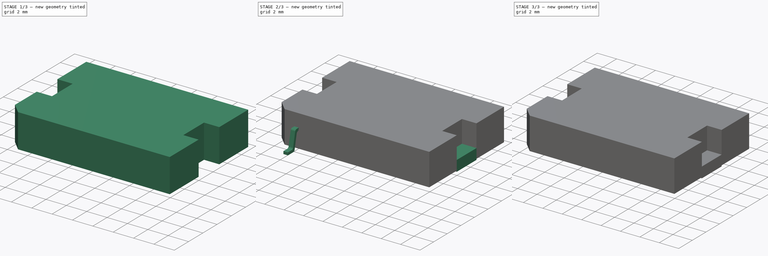
[diagram: build sequence overview — one tinted view per stage of 3, left to right]
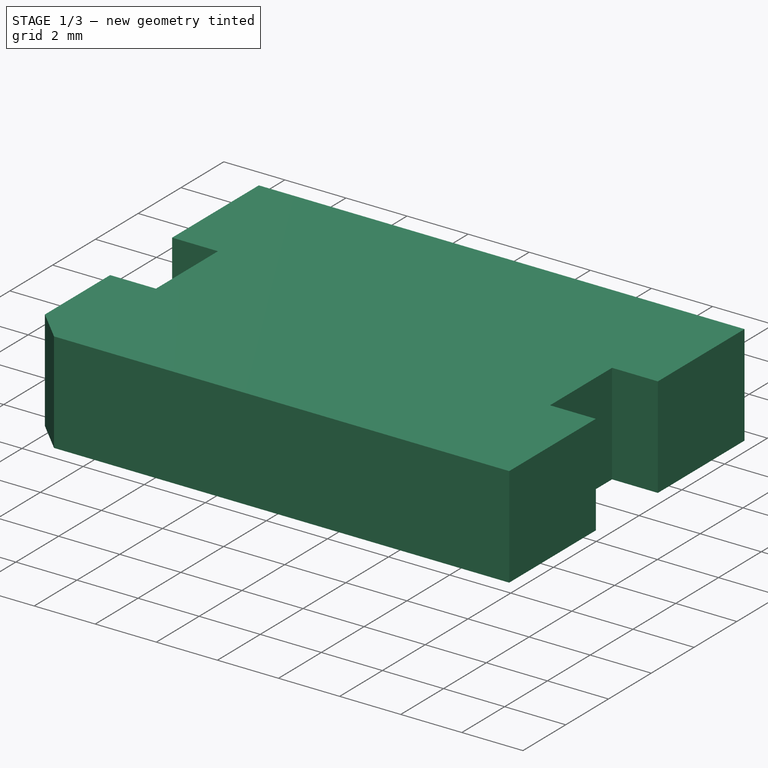
[diagram: stage 1 of 3 — iso view after this stage's code; geometry added in this stage tinted green]
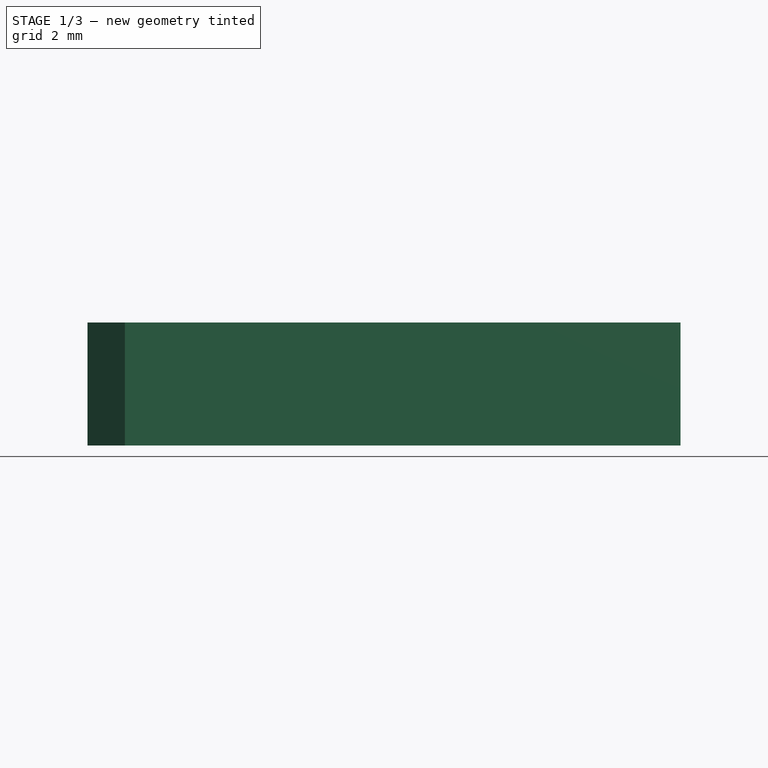
[diagram: stage 1 of 3 — front view after this stage's code; geometry added in this stage tinted green]
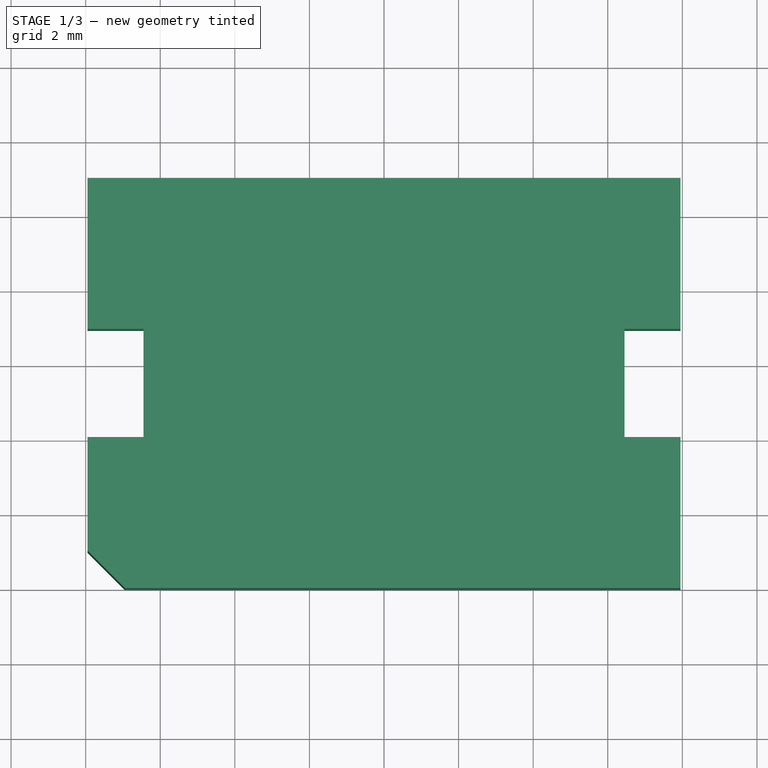
[diagram: stage 1 of 3 — top view after this stage's code; geometry added in this stage tinted green]
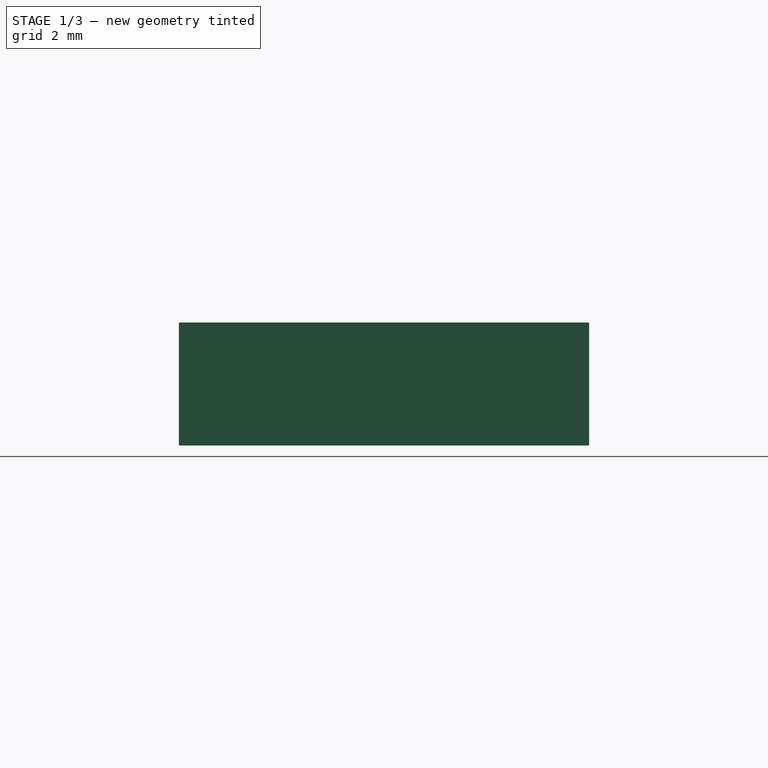
[diagram: stage 1 of 3 — right view after this stage's code; geometry added in this stage tinted green]
FCSTD DOCUMENT  (FreeCAD 0.16RUnknown)
Label: PowerSO20
License: All rights reserved
LicenseURL: http://en.wikipedia.org/wiki/All_rights_reserved
objects: Sketcher::SketchObject×4, PartDesign::Pad×3, PartDesign::Fillet×1, Part::FeaturePython×1, Part::Mirroring×1, PartDesign::Pocket×1
note: 15 computed .brp shape members not serialized (recipe doc carries the construction recipe); baked Part::Feature solids carry a one-line shape summary decoded from their .brp

FEATURE [Sketcher::SketchObject] Sketch001
  Placement = pos=(0,0,0.01) rot=(0,0,1;0rad)
  sketch-geometry (5):
    g0: LineSegment StartX=-7.95 StartY=11 StartZ=0 EndX=7.95 EndY=11 EndZ=0
    g1: LineSegment StartX=7.95 StartY=11 StartZ=0 EndX=7.95 EndY=0 EndZ=0
    g2: LineSegment StartX=7.95 StartY=0 StartZ=0 EndX=-6.95 EndY=0 EndZ=0
    g3: LineSegment StartX=-6.95 StartY=0 StartZ=0 EndX=-7.95 EndY=1 EndZ=0
    g4: LineSegment StartX=-7.95 StartY=1 StartZ=0 EndX=-7.95 EndY=11 EndZ=0
  constraints (15):
    c: Horizontal(g0)
    c: Coincident(g1,g0)
    c: PointOnObject(g1,g-1)
    c: Vertical(g1)
    c: Coincident(g2,g1)
    c: PointOnObject(g2,g-1)
    c: Coincident(g3,g2)
    c: Coincident(g4,g3)
    c: Coincident(g4,g0)
    c: Vertical(g4)
    c: Angle(g3,g4) = 2.35619
    c: DistanceX(g0,g0) = 15.9
    c: DistanceY(g1,g1) = 11
    c: DistanceX(g3,g2) = 1
    c: Symmetric(g0,g0,g-2)
FEATURE [PartDesign::Pad] Pad001
  Length = 3.3
  Length2 = 100
  Placement = pos=(0,0,0.01) rot=(0,0,1;0rad)
  Sketch = -> Sketch001
  Type = 0
FEATURE [Sketcher::SketchObject] Sketch002
  ExternalGeometry = -> [Pad001]
  Placement = pos=(0,0,3.31) rot=(0,0,1;0rad)
  Support = -> Pad001 [Face7]
  sketch-geometry (9):
    g0: LineSegment StartX=-7.95 StartY=6.95 StartZ=0 EndX=-6.45 EndY=6.95 EndZ=0
    g1: LineSegment StartX=-6.45 StartY=6.95 StartZ=0 EndX=-6.45 EndY=4.05 EndZ=0
    g2: LineSegment StartX=-6.45 StartY=4.05 StartZ=0 EndX=-7.95 EndY=4.05 EndZ=0
    g3: LineSegment StartX=-7.95 StartY=4.05 StartZ=0 EndX=-7.95 EndY=6.95 EndZ=0
    g4: LineSegment StartX=7.95 StartY=6.95 StartZ=0 EndX=6.45 EndY=6.95 EndZ=0
    g5: LineSegment StartX=6.45 StartY=6.95 StartZ=0 EndX=6.45 EndY=4.05 EndZ=0
    g6: LineSegment StartX=6.45 StartY=4.05 StartZ=0 EndX=7.95 EndY=4.05 EndZ=0
    g7: LineSegment StartX=7.95 StartY=4.05 StartZ=0 EndX=7.95 EndY=6.95 EndZ=0
    g8: GeomPoint [constr] X=7.95 Y=5.5 Z=0
  constraints (25):
    c: Coincident(g0,g1)
    c: Coincident(g1,g2)
    c: Coincident(g2,g3)
    c: Coincident(g3,g0)
    c: Horizontal(g0)
    c: Horizontal(g2)
    c: Vertical(g1)
    c: Vertical(g3)
    c: PointOnObject(g0,g-3)
    c: Coincident(g4,g5)
    c: Coincident(g5,g6)
    c: Coincident(g6,g7)
    c: Coincident(g7,g4)
    c: Horizontal(g4)
    c: Horizontal(g6)
    c: Vertical(g5)
    c: Vertical(g7)
    c: PointOnObject(g4,g-4)
    c: Symmetric(g-4,g-4,g8)
    c: Symmetric(g6,g4,g8)
    c: Equal(g1,g5)
    c: Equal(g0,g4)
    c: Symmetric(g0,g4,g-2)
    c: DistanceX(g6,g6) = 1.5
    c: DistanceY(g5,g5) = 2.9
FEATURE [PartDesign::Pocket] Pocket
  Length = 5
  Placement = pos=(0,0,0.01) rot=(0,0,1;0rad)
  Sketch = -> Sketch002
  Type = 0
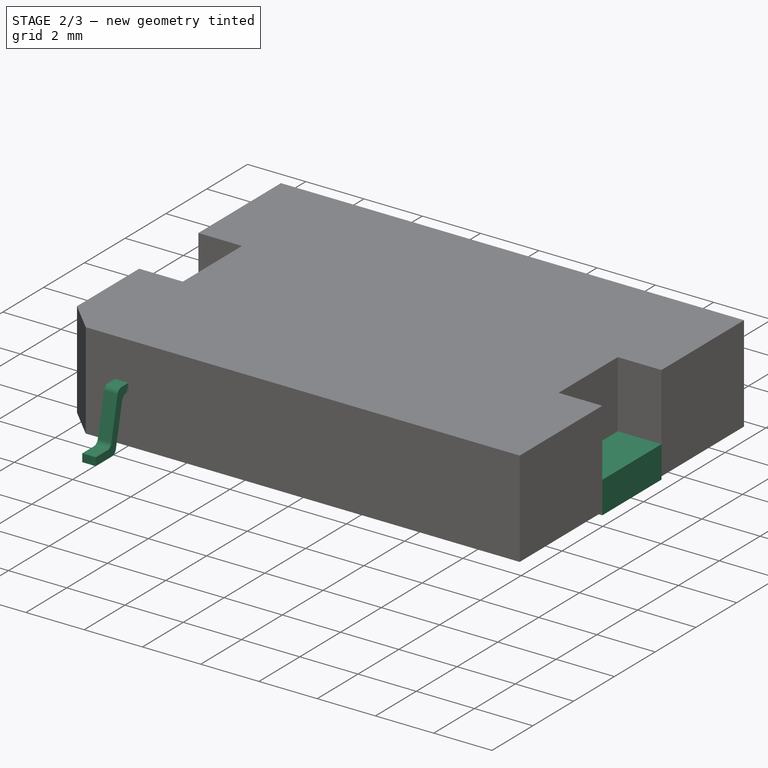
[diagram: stage 2 of 3 — iso view after this stage's code; geometry added in this stage tinted green]
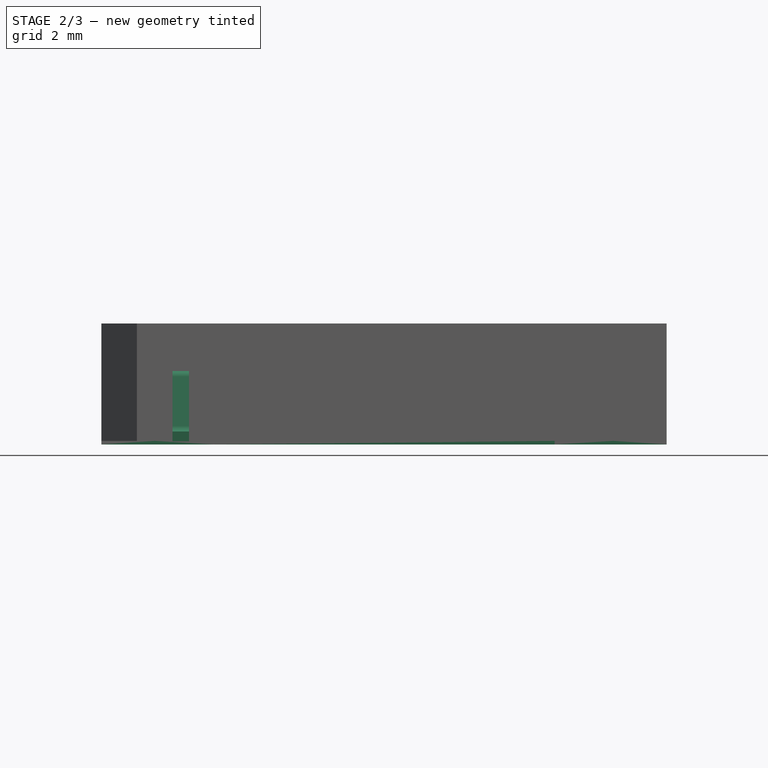
[diagram: stage 2 of 3 — front view after this stage's code; geometry added in this stage tinted green]
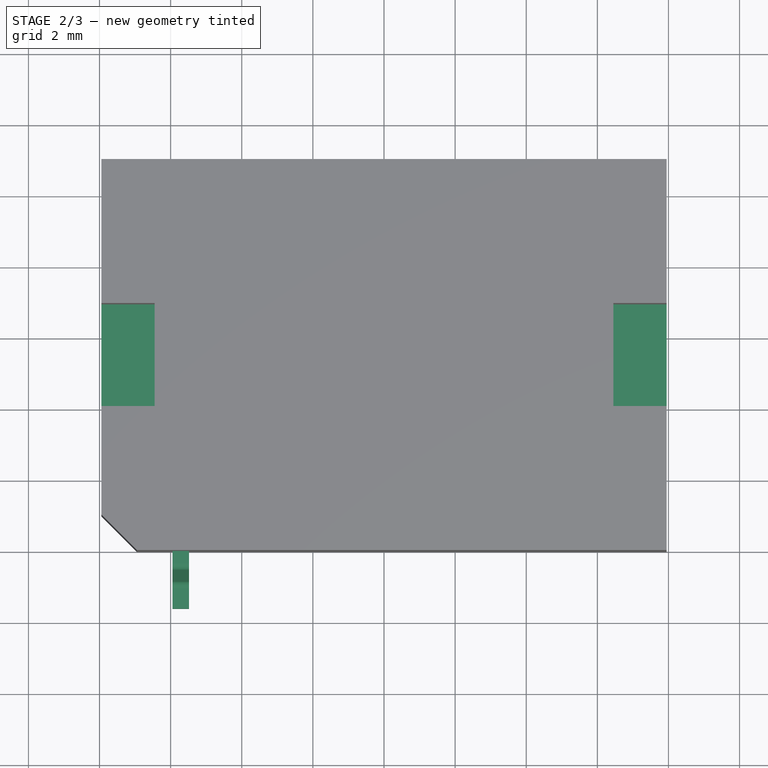
[diagram: stage 2 of 3 — top view after this stage's code; geometry added in this stage tinted green]
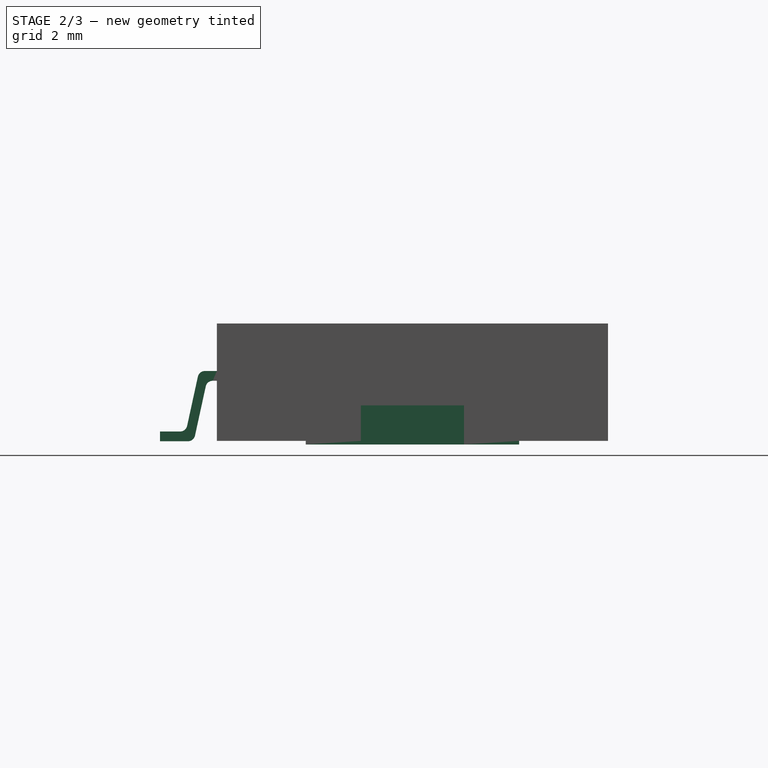
[diagram: stage 2 of 3 — right view after this stage's code; geometry added in this stage tinted green]
FEATURE [Sketcher::SketchObject] Sketch
  Placement = pos=(-5.9475,0,0) rot=(0.57735,0.57735,0.57735;2.0944rad)
  sketch-geometry (9):
    g0: LineSegment StartX=-1.6 StartY=0 StartZ=0 EndX=-0.65 EndY=0 EndZ=0
    g1: LineSegment StartX=-0.65 StartY=0 StartZ=0 EndX=-0.278594 EndY=1.7 EndZ=0
    g2: LineSegment StartX=-0.278594 StartY=1.7 StartZ=0 EndX=0 EndY=1.7 EndZ=0
    g3: LineSegment StartX=0 StartY=1.7 StartZ=0 EndX=0 EndY=1.975 EndZ=0
    g4: LineSegment StartX=0 StartY=1.975 StartZ=0 EndX=-0.5 EndY=1.975 EndZ=0
    g5: LineSegment StartX=-0.5 StartY=1.975 StartZ=0 EndX=-0.871406 EndY=0.275 EndZ=0
    g6: LineSegment StartX=-0.871406 StartY=0.275 StartZ=0 EndX=-1.6 EndY=0.275 EndZ=0
    g7: LineSegment StartX=-1.6 StartY=0.275 StartZ=0 EndX=-1.6 EndY=0 EndZ=0
    g8: LineSegment [constr] StartX=-0.278594 StartY=1.7 StartZ=0 EndX=-0.547257 EndY=1.7587 EndZ=0
  constraints (29):
    c: PointOnObject(g0,g-1)
    c: PointOnObject(g0,g-1)
    c: Coincident(g1,g0)
    c: Coincident(g2,g1)
    c: PointOnObject(g2,g-2)
    c: Horizontal(g2)
    c: PointOnObject(g3,g-2)
    c: Vertical(g3)
    c: PointOnObject(g4,g3)
    c: Coincident(g5,g4)
    c: Coincident(g6,g5)
    c: Coincident(g7,g6)
    c: Coincident(g7,g0)
    c: Parallel(g6,g0)
    c: Parallel(g5,g1)
    c: Parallel(g4,g2)
    c: Coincident(g3,g4)
    c: Parallel(g3,g7)
    c: PointOnObject(g8,g5)
    c: Perpendicular(g5,g8)
    c: Equal(g8,g3)
    c: Equal(g3,g7)
    c: Coincident(g8,g1)
    c: Coincident(g2,g3)
    c: DistanceY(g3,g3) = 0.275
    c: DistanceX(g4,g4) = 0.5
    c: DistanceX(g0,g0) = 0.95
    c: DistanceY(g-1,g2) = 1.7
    c: DistanceX(g0,g-1) = 1.6
FEATURE [PartDesign::Pad] Pad
  Length = 0.465
  Length2 = 100
  Placement = pos=(-5.9475,0,0) rot=(0.57735,0.57735,0.57735;2.0944rad)
  Sketch = -> Sketch
  Type = 0
FEATURE [PartDesign::Fillet] Fillet
  Base = -> Pad [Edge14,Edge17,Edge2,Edge5]
  Placement = pos=(-5.9475,0,0) rot=(0.57735,0.57735,0.57735;2.0944rad)
  Radius = 0.2
FEATURE [Sketcher::SketchObject] Sketch003
  ExternalGeometry = -> [Pocket]
  Placement = pos=(0,0,0.01) rot=(1,0,0;3.14159rad)
  Support = -> Pocket [Face4]
  sketch-geometry (12):
    g0: LineSegment StartX=-7.95 StartY=-6.95 StartZ=0 EndX=-7.95 EndY=-4.05 EndZ=0
    g1: LineSegment StartX=-7.95 StartY=-4.05 StartZ=0 EndX=-4.8 EndY=-4.05 EndZ=0
    g2: LineSegment StartX=-4.8 StartY=-4.05 StartZ=0 EndX=-4.8 EndY=-2.5 EndZ=0
    g3: LineSegment StartX=-4.8 StartY=-2.5 StartZ=0 EndX=4.8 EndY=-2.5 EndZ=0
    g4: LineSegment StartX=4.8 StartY=-2.5 StartZ=0 EndX=4.8 EndY=-4.05 EndZ=0
    g5: LineSegment StartX=4.8 StartY=-4.05 StartZ=0 EndX=7.95 EndY=-4.05 EndZ=0
    g6: LineSegment StartX=7.95 StartY=-4.05 StartZ=0 EndX=7.95 EndY=-6.95 EndZ=0
    g7: LineSegment StartX=7.95 StartY=-6.95 StartZ=0 EndX=4.8 EndY=-6.95 EndZ=0
    g8: LineSegment StartX=4.8 StartY=-6.95 StartZ=0 EndX=4.8 EndY=-8.5 EndZ=0
    g9: LineSegment StartX=4.8 StartY=-8.5 StartZ=0 EndX=-4.8 EndY=-8.5 EndZ=0
    g10: LineSegment StartX=-4.8 StartY=-8.5 StartZ=0 EndX=-4.8 EndY=-6.95 EndZ=0
    g11: LineSegment StartX=-4.8 StartY=-6.95 StartZ=0 EndX=-7.95 EndY=-6.95 EndZ=0
  constraints (34):
    c: Coincident(g0,g-4)
    c: Coincident(g0,g-3)
    c: Coincident(g1,g0)
    c: Horizontal(g1)
    c: Coincident(g2,g1)
    c: Vertical(g2)
    c: Coincident(g3,g2)
    c: Horizontal(g3)
    c: Coincident(g4,g3)
    c: Vertical(g4)
    c: Coincident(g5,g4)
    c: Coincident(g5,g-6)
    c: Horizontal(g5)
    c: Coincident(g6,g5)
    c: Coincident(g6,g-5)
    c: Horizontal(g7)
    c: Coincident(g8,g7)
    c: Vertical(g8)
    c: Coincident(g9,g8)
    c: Horizontal(g9)
    c: Coincident(g11,g10)
    c: Coincident(g11,g0)
    c: Horizontal(g11)
    c: Vertical(g10)
    c: Equal(g3,g9)
    c: Equal(g2,g10)
    c: Equal(g10,g8)
    c: Equal(g8,g4)
    c: Equal(g1,g11)
    c: Equal(g11,g7)
    c: Equal(g7,g5)
    c: Coincident(g9,g10)
    c: DistanceY(g9,g2) = 6
    c: DistanceX(g1,g4) = 9.6
FEATURE [PartDesign::Pad] Pad002
  Length = 0.1
  Length2 = 1
  Placement = pos=(0,0,0.01) rot=(0,0,1;0rad)
  Reversed = true
  Sketch = -> Sketch003
  Type = 4
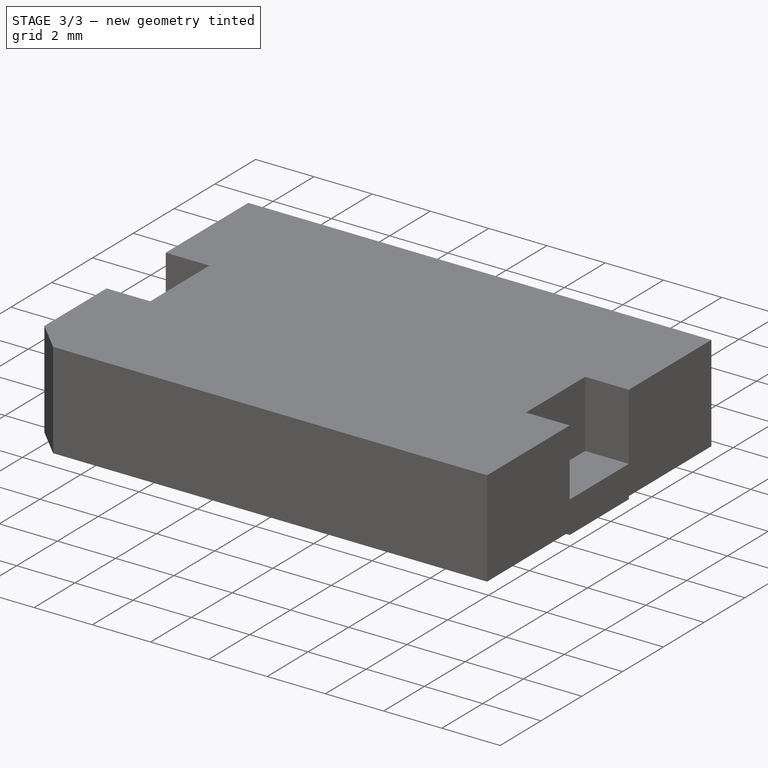
[diagram: stage 3 of 3 — iso view after this stage's code; geometry added in this stage tinted green]
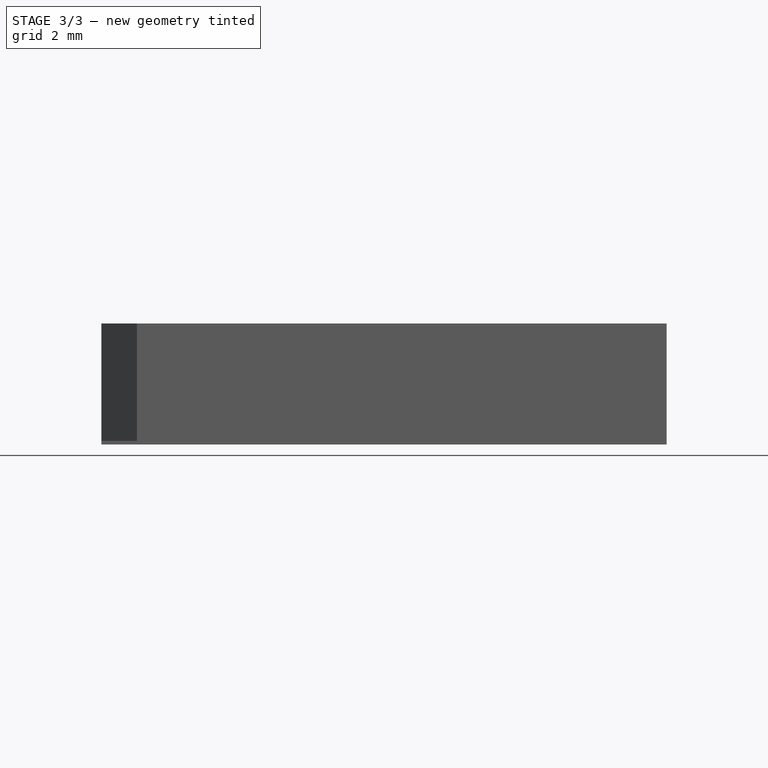
[diagram: stage 3 of 3 — front view after this stage's code; geometry added in this stage tinted green]
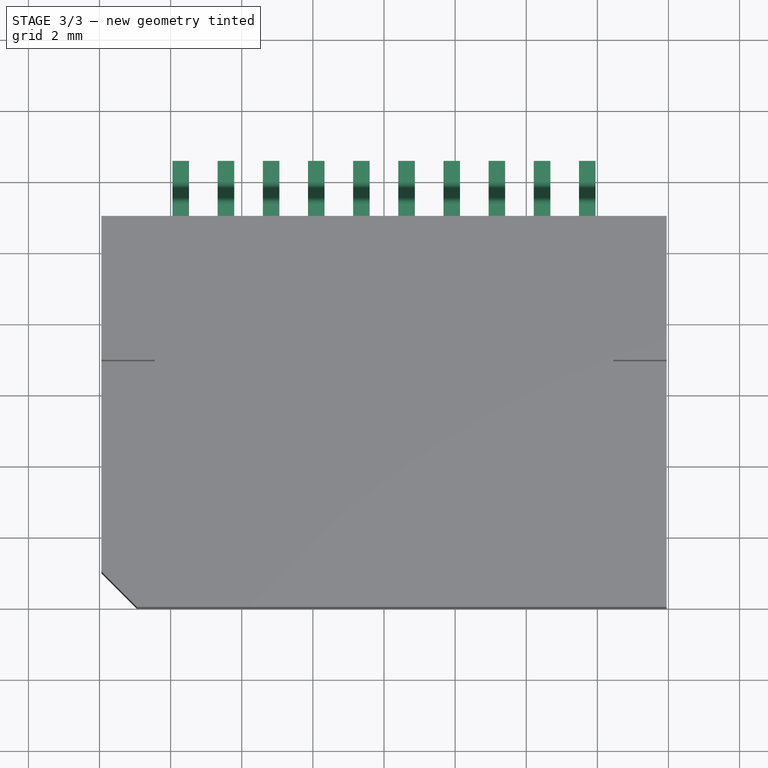
[diagram: stage 3 of 3 — top view after this stage's code; geometry added in this stage tinted green]
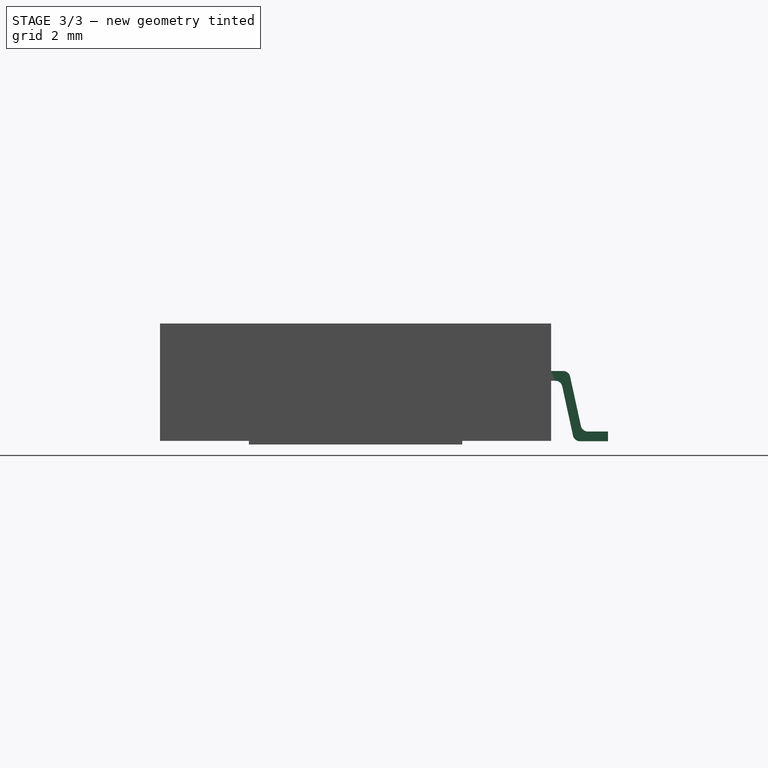
[diagram: stage 3 of 3 — right view after this stage's code; geometry added in this stage tinted green]
FEATURE [Part::FeaturePython] Array  # Draft array (typed FeaturePython)
  Angle = 360
  ArrayType = 0
  Axis = (0,0,1)
  Base = -> Fillet
  Center = (0,0,0)
  Fuse = false
  IntervalAxis = (0,0,0)
  IntervalX = (1.27,0,0)
  IntervalY = (0,1,0)
  IntervalZ = (0,0,0)
  NumberPolar = 1
  NumberX = 10
  NumberY = 0
  NumberZ = 1
FEATURE [Part::Mirroring] Part__Mirroring  label="Array (Mirror #1)"
  Base = (0,0,0)
  Normal = (0,1,0)
  Placement = pos=(0,11,0) rot=(0,0,1;0rad)
  Source = -> Array
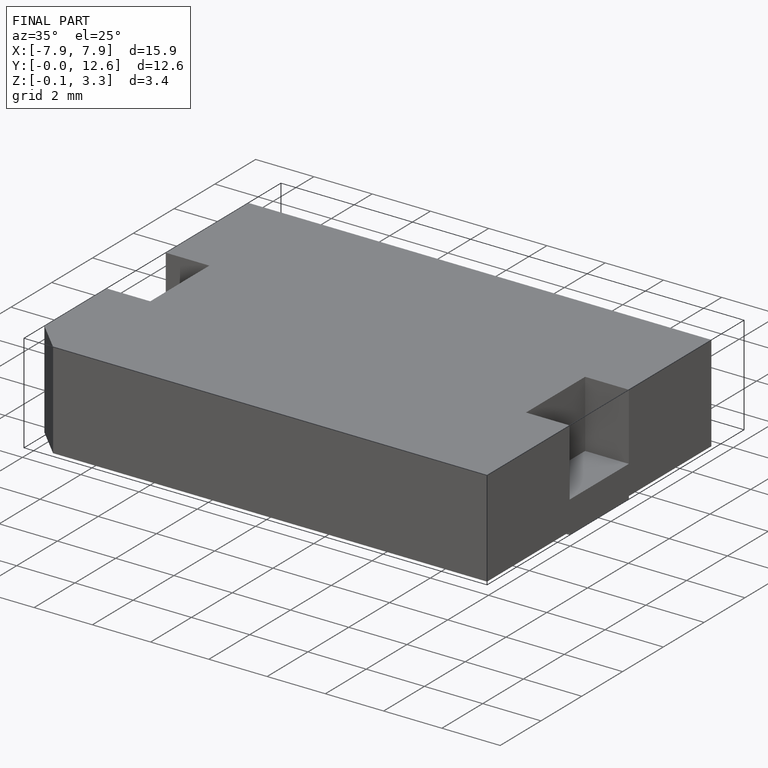
[diagram: finished part — iso view with bounding-box wireframe]
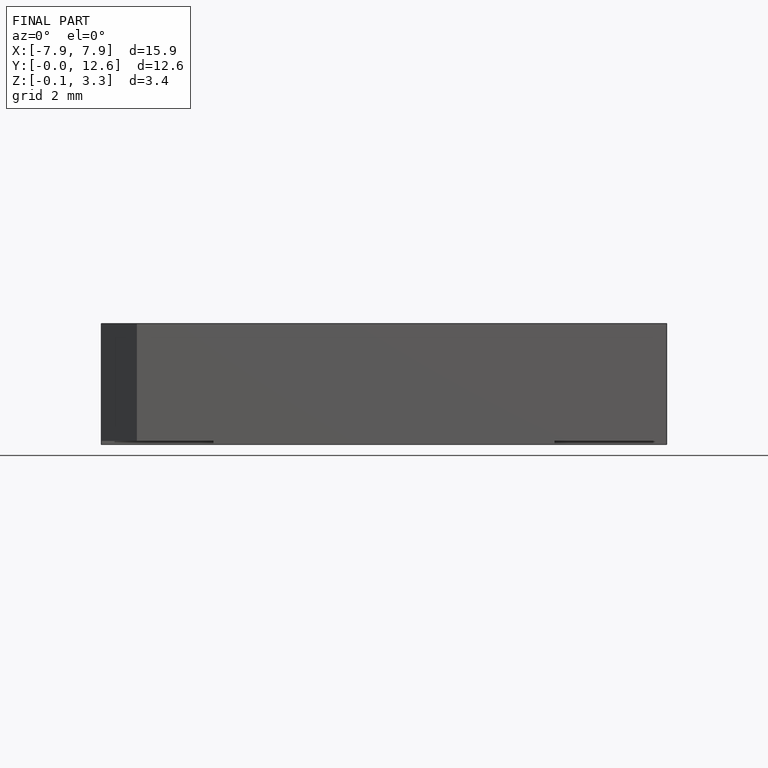
[diagram: finished part — front view with bounding-box wireframe]
